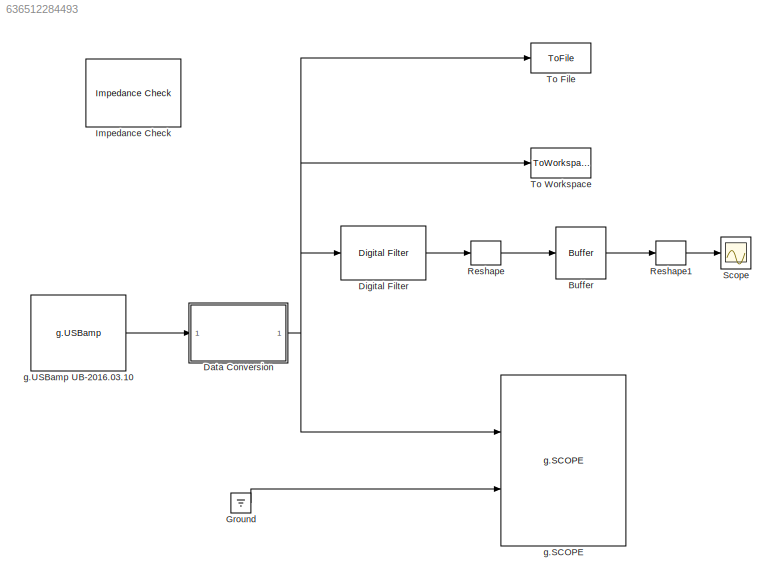
MODEL slx_636512284493
KIND model
CONFIG InitFcn = [B,A]=cheby1(2,6,[.1,10]/(512/2));
BLOCK [Buffer] Buffer
  N = 512*4
  TreatMby1Signals = One channel
  V = (512*4)-1
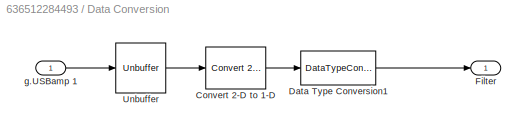
BLOCK [SubSystem] Data Conversion 
  Ports = [1, 1]
  RequestExecContextInheritance = off
BLOCK [Reference] Data Conversion /Convert 2-D to 1-D  REF=dspsigattribs/Convert 2-D to 1-D
  Ports = [1, 1]
  SourceBlock = dspsigattribs/Convert 2-D to 1-D
  SourceType = Convert 2-D to 1-D
BLOCK [DataTypeConversion] Data Conversion /Data Type Conversion1
  OutDataTypeStr = double
  RndMeth = Floor
  SaturateOnIntegerOverflow = off
BLOCK [Outport] Data Conversion /Filter
  IconDisplay = Port number
BLOCK [Unbuffer] Data Conversion /Unbuffer
  Ports = [1, 1]
  SampleBasedProcessing = Same as frame based
BLOCK [Inport] Data Conversion /g.USBamp 1
  IconDisplay = Port number
  Priority = 2
BLOCK [Reference] Digital Filter  REF=dsparch4/Digital Filter
  AllPoleFiltStruct = Direct form
  BiQuadCoeffs = [1 0.3 0.4 1 0.1 0.2]
  CoeffSource = Specify via dialog
  DenCoeffs = A
  FIRFiltStruct = Direct form
  FiltPerSampPopup = One filter per frame
  FilterSource = Specify via dialog
  IC = 0
  ICden = 0
  ICnum = 0
  IIRFiltStruct = Direct form II transposed
  InputProcessing = Elements as channels (sample based)
  LatticeCoeffs = [0.2 0.4]
  LockScale = off
  NumCoeffs = B
  Ports = [1, 1]
  ScaleValues = 1
  SourceBlock = dsparch4/Digital Filter
  SourceType = Digital Filter
  TypePopup = IIR (poles & zeros)
  UserDataPersistent = on
  accumFracLength = 30
  accumMode = Same as product output
  accumWordLength = 32
  additionalParams = off
  allowOverrides = on
  denIgnore = on
  dfiltObjectName = dfilt.dffir([1 2 1])
  firstCoeffFracLength = 15
  firstCoeffMode = Same word length as input
  firstCoeffWordLength = 16
  memoryFracLength = 15
  memoryMode = Same as accumulator
  memoryWordLength = 16
  multiplicandFracLength = 30
  multiplicandMode = Same as output
  multiplicandWordLength = 32
  outputFracLength = 15
  outputMode = Same as accumulator
  outputWordLength = 16
  overflowMode = off
  prodOutputFracLength = 30
  prodOutputMode = Same as input
  prodOutputWordLength = 32
  roundingMode = Floor
  scaleValueFracLength = 14
  secondCoeffFracLength = 15
  secondCoeffMode = Same as numerator
  secondCoeffWordLength = 16
  showAcc = off
  showCoeff = off
  showMem = off
  showMpy = off
  showOut = off
  stageIOMode = Same as input
  stageIOWordLength = 16
  stageInFracLength = 15
  stageOutFracLength = 15
  tapSumFracLength = 30
  tapSumMode = Same as input
  tapSumWordLength = 32
  thirdCoeffFracLength = 15
  thirdCoeffMode = Same as input
  thirdCoeffWordLength = 16
BLOCK [Ground] Ground
BLOCK [Reference] Impedance Check  REF=Tools/Impedance Check
  Ports = []
  SourceBlock = Tools/Impedance Check
  SourceType = g.USBamp Impedance Check
BLOCK [Reshape] Reshape
  OutputDimensionality = Row vector (2-D)
  Ports = [1, 1]
BLOCK [Reshape] Reshape1
  Ports = [1, 1]
BLOCK [Scope] Scope
  Floating = off
  NumInputPorts = 1
  Ports = [1]
  ShowLegends = off
BLOCK [ToFile] To File
  Filename = tempEEGdata.mat
  Ports = [1]
  SaveFormat = Timeseries
BLOCK [ToWorkspace] To Workspace
  FixptAsFi = on
  MaxDataPoints = inf
  Ports = [1]
  SampleTime = -1
  Save2DSignal = 3-D array (concatenate along third dimension)
  SaveFormat = Timeseries
  VariableName = rawData
BLOCK [Reference] g.SCOPE  REF=gtecHighspeedLib/g.SCOPE
  Ports = [2]
  SourceBlock = gtecHighspeedLib/g.SCOPE
  SourceType = g.SCOPE
  UserDataPersistent = on
BLOCK [Reference] g.USBamp UB-2016.03.10  REF=gUSBamplib/g.USBamp
  Ports = [4, 1]
  Priority = 1
  SourceBlock = gUSBamplib/g.USBamp
  SourceType = g.USBamp
  cfg = currentCFG_TLIinterface_SimulinkSupport_UB-2016.03.10.cfg
  snr = UB-2016.03.10
LINE Buffer:1 -> Reshape1:1
LINE Data Conversion /Convert 2-D to 1-D:1 -> Data Conversion /Data Type Conversion1:1
LINE Data Conversion /Data Type Conversion1:1 -> Data Conversion /Filter:1
LINE Data Conversion /Unbuffer:1 -> Data Conversion /Convert 2-D to 1-D:1
LINE Data Conversion /g.USBamp 1:1 -> Data Conversion /Unbuffer:1
NET Data Conversion :1 -> Digital Filter:1, To File:1, To Workspace:1, g.SCOPE:1
LINE Digital Filter:1 -> Reshape:1
LINE Ground:1 -> g.SCOPE:2
LINE Reshape1:1 -> Scope:1
LINE Reshape:1 -> Buffer:1
LINE g.USBamp UB-2016.03.10:1 -> Data Conversion :1
note: NET lines group one-source signal fan-out (src -> all destinations, sorted); 1:1 wires keep LINE
